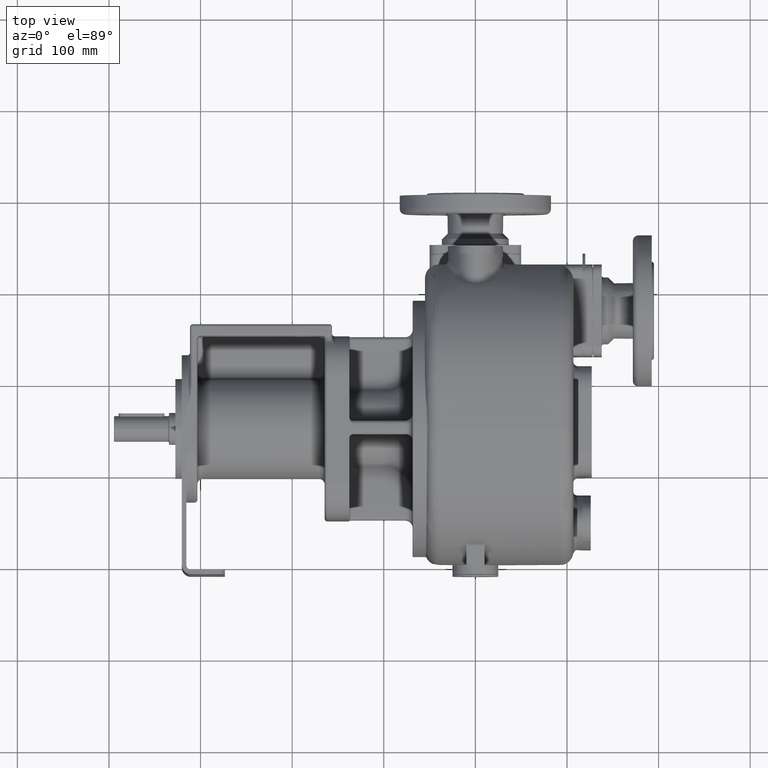
[diagram: clean part render]
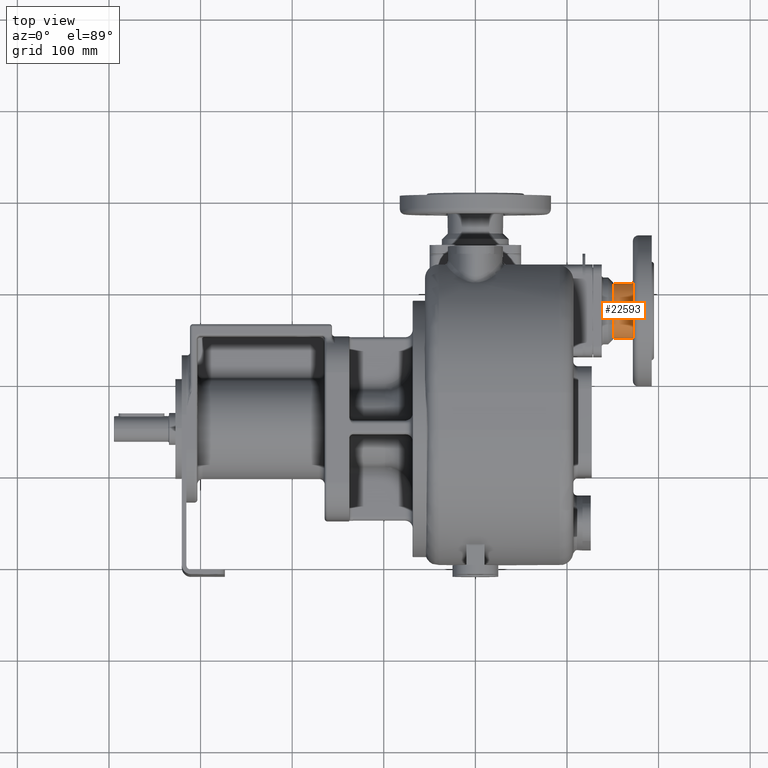
[diagram: same view with one face highlighted and labeled with its STEP entity id]
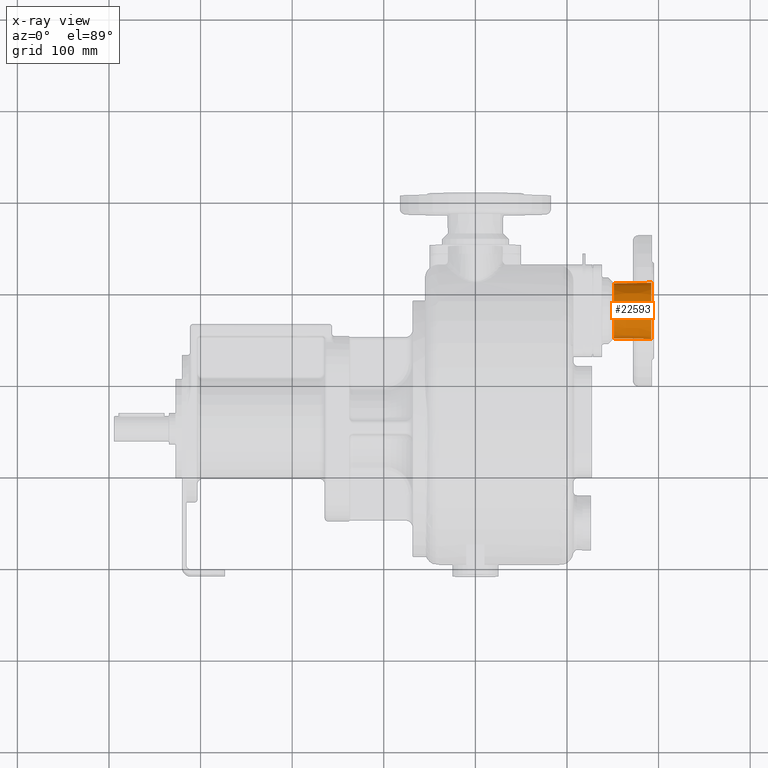
[diagram: x-ray of the same camera — body ghosted, the highlighted face saturated]
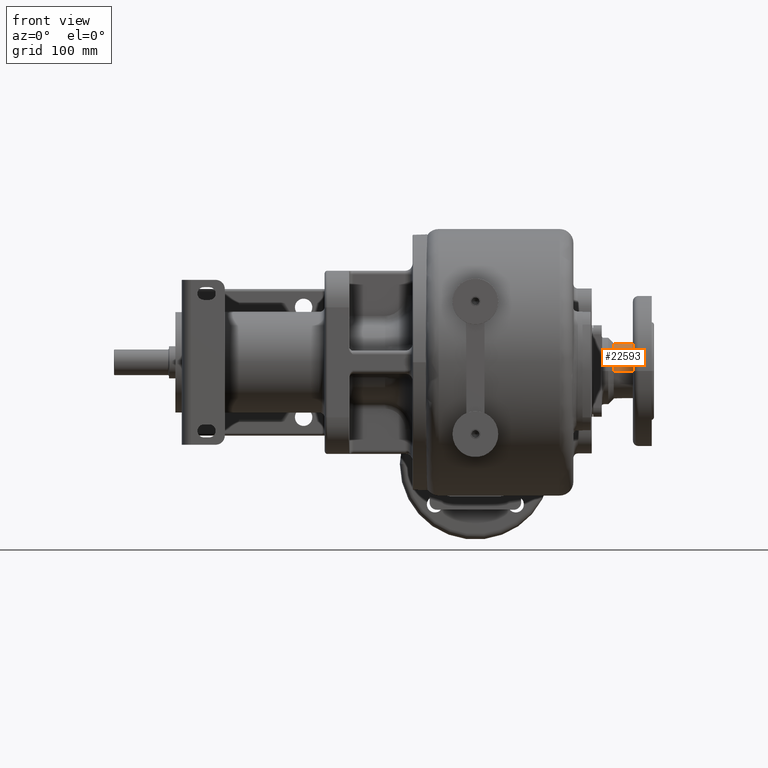
[diagram: same view with one face highlighted and labeled with its STEP entity id]
A machine part, top view. The second image highlights one B-rep face of the part: STEP entity #22593.
The next image is the same camera in x-ray: the body ghosted, the highlighted face saturated — about 0% of this face is hidden behind the body in this view.
A second angle (front view) of the same face is appended — the face is thin or edge-on in the first view.
In plain terms, the highlighted conical surface has half-angle 0.699 deg.
Its self-contained STEP definition (entity closure, byte-faithful):
#6412=CARTESIAN_POINT('',(1.51E2,2.79E2,-9.5E0));
#6413=DIRECTION('',(1.E0,0.E0,0.E0));
#6414=DIRECTION('',(0.E0,1.E0,0.E0));
#6415=AXIS2_PLACEMENT_3D('',#6412,#6413,#6414);
#6422=DIRECTION('',(-9.999256588475E-1,-1.219330875238E-2,0.E0));
#6423=VECTOR('',#6422,4.100914532150E1);
#6424=CARTESIAN_POINT('',(1.920060966544E2,3.096500371706E2,-9.5E0));
#6425=LINE('',#6424,#6423);
#6426=CARTESIAN_POINT('',(1.920060966544E2,2.79E2,-9.5E0));
#6427=DIRECTION('',(-1.E0,0.E0,0.E0));
#6428=DIRECTION('',(0.E0,-1.E0,0.E0));
#6429=AXIS2_PLACEMENT_3D('',#6426,#6427,#6428);
#6431=DIRECTION('',(-9.999256588475E-1,1.219330875238E-2,0.E0));
#6432=VECTOR('',#6431,4.100914532150E1);
#6433=CARTESIAN_POINT('',(1.920060966544E2,2.483499628294E2,-9.5E0));
#6434=LINE('',#6433,#6432);
#12078=CARTESIAN_POINT('',(1.920060966544E2,2.483499628294E2,-9.5E0));
#12080=VERTEX_POINT('',#12078);
#12090=CARTESIAN_POINT('',(1.920060966544E2,3.096500371706E2,-9.5E0));
#12092=VERTEX_POINT('',#12090);
#12189=CARTESIAN_POINT('',(1.51E2,2.4885E2,-9.5E0));
#12190=CARTESIAN_POINT('',(1.51E2,3.0915E2,-9.5E0));
#12191=VERTEX_POINT('',#12189);
#12192=VERTEX_POINT('',#12190);
#22581=CARTESIAN_POINT('',(1.715030483272E2,2.79E2,-9.5E0));
#22582=DIRECTION('',(1.E0,0.E0,0.E0));
#22583=DIRECTION('',(0.E0,1.E0,0.E0));
#22584=AXIS2_PLACEMENT_3D('',#22581,#22582,#22583);
#22585=CONICAL_SURFACE('',#22584,3.040001858529E1,6.986424425252E-1);
#22586=ORIENTED_EDGE('',*,*,#22561,.F.);
#22587=ORIENTED_EDGE('',*,*,#22576,.F.);
#22589=ORIENTED_EDGE('',*,*,#22588,.F.);
#22590=ORIENTED_EDGE('',*,*,#22572,.T.);
#22591=EDGE_LOOP('',(#22586,#22587,#22589,#22590));
#22592=FACE_OUTER_BOUND('',#22591,.F.);
#22593=ADVANCED_FACE('',(#22592),#22585,.T.);
#6416=CIRCLE('',#6415,3.015E1);
#6430=CIRCLE('',#6429,3.065003717058E1);
#22561=EDGE_CURVE('',#12192,#12191,#6416,.T.);
#22572=EDGE_CURVE('',#12080,#12191,#6434,.T.);
#22576=EDGE_CURVE('',#12092,#12192,#6425,.T.);
#22588=EDGE_CURVE('',#12080,#12092,#6430,.T.);